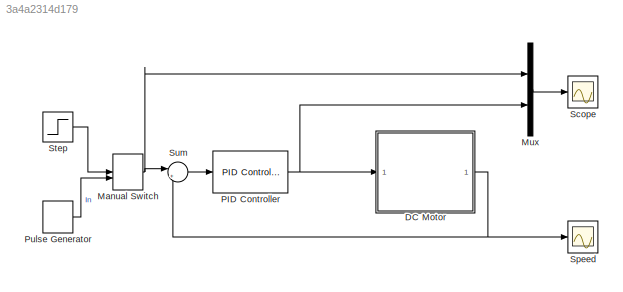
MODEL slx_3a4a2314d179
KIND model
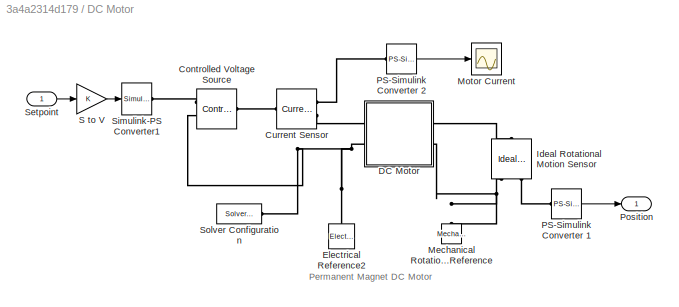
BLOCK [SubSystem] DC Motor
  FunctionWithSeparateData = off
  MaskHideContents = off
  MinAlgLoopOccurrences = off
  Opaque = off
  Ports = [1, 1]
  PropExecContextOutsideSubsystem = off
  RTWSystemCode = Auto
  RequestExecContextInheritance = off
BLOCK [Outport] DC Motor/ Position
  IconDisplay = Port number
BLOCK [Reference] DC Motor/Controlled Voltage Source  REF=fl_lib/Electrical/Electrical Sources/Controlled Voltage
Source
  ClassName = controlled_voltage
  ComponentPath = foundation.electrical.sources.controlled_voltage
  ComponentVariantNames = controlled_voltage
  ComponentVariants = foundation.electrical.sources.controlled_voltage
  LocalVarDescs = |i|v
  LocalVarLogging = [0 0]
  LocalVarNames = |i|v
  Ports = [0, 0, 0, 0, 0, 1, 2]
  SchemaVersion = 1
  SourceBlock = fl_lib/Electrical/Electrical Sources/Controlled Voltage\nSource
  SourceFile = foundation.electrical.sources.controlled_voltage
  SourceType = Controlled Voltage\nSource
  i_Log = off
  v_Log = off
BLOCK [Reference] DC Motor/Current Sensor  REF=fl_lib/Electrical/Electrical Sensors/Current Sensor
  ClassName = sensor_current
  ComponentPath = foundation.electrical.sensors.current
  ComponentVariantNames = current
  ComponentVariants = foundation.electrical.sensors.current
  LocalVarDescs = |i1|v1
  LocalVarLogging = []
  LocalVarNames = |i1|v1
  Ports = [0, 0, 0, 0, 0, 1, 2]
  SchemaVersion = 1
  SourceBlock = fl_lib/Electrical/Electrical Sensors/Current Sensor
  SourceFile = foundation.electrical.sensors.current
  SourceType = Current Sensor
  i1_Log = off
  v1_Log = off
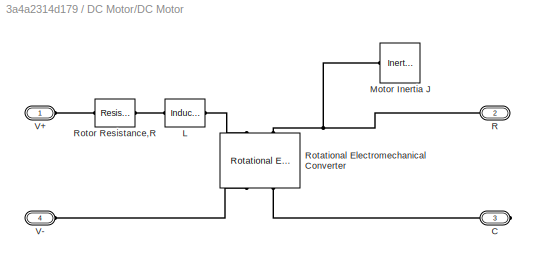
BLOCK [SubSystem] DC Motor/DC Motor
  FunctionWithSeparateData = off
  MaskHideContents = off
  MinAlgLoopOccurrences = off
  Opaque = off
  Ports = [0, 0, 0, 0, 0, 2, 2]
  PropExecContextOutsideSubsystem = off
  RTWSystemCode = Auto
  RequestExecContextInheritance = off
BLOCK [PMIOPort] DC Motor/DC Motor/C
  Port = 3
  Side = Right
BLOCK [Reference] DC Motor/DC Motor/L  REF=fl_lib/Electrical/Electrical Elements/Inductor
  ClassName = inductor
  ComponentPath = foundation.electrical.elements.inductor
  ComponentVariantNames = inductor
  ComponentVariants = foundation.electrical.elements.inductor
  LocalVarDescs = |Inductor current (A) |Voltage across inductor (V)|Power (W)
  LocalVarLogging = [0 0 0]
  LocalVarNames = |current|voltage|power
  Ports = [0, 0, 0, 0, 0, 1, 1]
  SchemaVersion = 1
  SourceBlock = fl_lib/Electrical/Electrical Elements/Inductor
  SourceFile = foundation.electrical.elements.inductor
  SourceType = Inductor
  g = 1e-09
  g_unit = 1/Ohm
  i0 = 0
  i0_unit = A
  i_L_Log = off
  i_Log = off
  l = L
  l_unit = H
  r = 0
  r_unit = Ohm
  v_Log = off
BLOCK [Reference] DC Motor/DC Motor/Motor Inertia J  REF=fl_lib/Mechanical/Rotational Elements/Inertia
  ClassName = inertia
  ComponentPath = foundation.mechanical.rotational.inertia
  ComponentVariantNames = inertia
  ComponentVariants = foundation.mechanical.rotational.inertia
  LocalVarDescs = |Inertia torque (N*m)|Inertia absolute velocity (rad/s)
  LocalVarLogging = [0 0]
  LocalVarNames = |torque|velocity
  Ports = [0, 0, 0, 0, 0, 1]
  SchemaVersion = 1
  SourceBlock = fl_lib/Mechanical/Rotational Elements/Inertia
  SourceFile = foundation.mechanical.rotational.inertia
  SourceType = Inertia
  inertia = J
  inertia_unit = kg*m^2
  initial_velocity = 0
  initial_velocity_unit = rad/s
  t_Log = off
BLOCK [PMIOPort] DC Motor/DC Motor/R
  Port = 2
  Side = Right
BLOCK [Reference] DC Motor/DC Motor/Rotational Electromechanical Converter  REF=fl_lib/Electrical/Electrical Elements/Rotational
Electromechanical
Converter
  ClassName = rotational_converter
  ComponentPath = foundation.electrical.elements.rotational_converter
  ComponentVariantNames = rotational_converter
  ComponentVariants = foundation.electrical.elements.rotational_converter
  K = K
  K_unit = V/rpm
  LocalVarDescs = |Current (A)|Voltage (V)|Power (W)|Torque (Nm)|Angular speed (rad/s)
  LocalVarLogging = [0 0 0 0 0]
  LocalVarNames = |current|voltage|power|torque|speed
  Ports = [0, 0, 0, 0, 0, 2, 2]
  SchemaVersion = 1
  SourceBlock = fl_lib/Electrical/Electrical Elements/Rotational\nElectromechanical\nConverter
  SourceFile = foundation.electrical.elements.rotational_converter
  SourceType = Rotational\nElectromechanical\nConverter
  i_Log = off
  t_Log = off
  v_Log = off
  w_Log = off
BLOCK [Reference] DC Motor/DC Motor/Rotor Resistance,R  REF=fl_lib/Electrical/Electrical Elements/Resistor
  ClassName = resistor
  ComponentPath = foundation.electrical.elements.resistor
  ComponentVariantNames = resistor
  ComponentVariants = foundation.electrical.elements.resistor
  LocalVarDescs = |Resistor current (A)|Voltage across resistor (V)|Power (W)
  LocalVarLogging = [0 0 0]
  LocalVarNames = |current|voltage|power
  Ports = [0, 0, 0, 0, 0, 1, 1]
  R = R
  R_unit = Ohm
  SchemaVersion = 1
  SourceBlock = fl_lib/Electrical/Electrical Elements/Resistor
  SourceFile = foundation.electrical.elements.resistor
  SourceType = Resistor
  Tag = Factory Generic
  i_Log = off
  v_Log = off
BLOCK [PMIOPort] DC Motor/DC Motor/V+
  Port = 1
  Side = Left
BLOCK [PMIOPort] DC Motor/DC Motor/V-
  Port = 4
  Side = Left
BLOCK [Reference] DC Motor/Electrical Reference2  REF=fl_lib/Electrical/Electrical Elements/Electrical Reference
  ClassName = reference_electrical
  ComponentPath = foundation.electrical.elements.reference
  ComponentVariantNames = reference
  ComponentVariants = foundation.electrical.elements.reference
  LocalVarDescs = |i
  LocalVarLogging = []
  LocalVarNames = |i
  Ports = [0, 0, 0, 0, 0, 1]
  SchemaVersion = 1
  SourceBlock = fl_lib/Electrical/Electrical Elements/Electrical Reference
  SourceFile = foundation.electrical.elements.reference
  SourceType = Electrical Reference
  i_Log = off
BLOCK [Reference] DC Motor/Ideal Rotational Motion Sensor  REF=fl_lib/Mechanical/Mechanical Sensors/Ideal Rotational
Motion Sensor
  ClassName = sensor_rot_motion
  ComponentPath = foundation.mechanical.sensors.angular_velocity
  ComponentVariantNames = angular_velocity
  ComponentVariants = foundation.mechanical.sensors.angular_velocity
  LocalVarDescs = |w|t|phi
  LocalVarLogging = []
  LocalVarNames = |w|t|phi
  Ports = [0, 0, 0, 0, 0, 1, 3]
  SchemaVersion = 1
  SourceBlock = fl_lib/Mechanical/Mechanical Sensors/Ideal Rotational\nMotion Sensor
  SourceFile = foundation.mechanical.sensors.angular_velocity
  SourceType = Ideal Rotational\nMotion Sensor
  offset = 300
  offset_unit = deg
  phi_Log = off
  t_Log = off
  w_Log = off
BLOCK [Reference] DC Motor/Mechanical Rotational Reference  REF=fl_lib/Mechanical/Rotational Elements/Mechanical
Rotational Reference
  ClassName = reference_rot
  ComponentPath = foundation.mechanical.rotational.reference
  ComponentVariantNames = reference
  ComponentVariants = foundation.mechanical.rotational.reference
  LocalVarDescs = |t
  LocalVarLogging = []
  LocalVarNames = |t
  Ports = [0, 0, 0, 0, 0, 1]
  SchemaVersion = 1
  SourceBlock = fl_lib/Mechanical/Rotational Elements/Mechanical\nRotational Reference
  SourceFile = foundation.mechanical.rotational.reference
  SourceType = Mechanical\nRotational Reference
  t_Log = off
BLOCK [Scope] DC Motor/Motor Current
  DataFormat = StructureWithTime
  Floating = off
  LimitDataPoints = off
  NumInputPorts = 1
  Ports = [1]
  SampleTime = 0
  SaveName = ScopeData1
  ShowLegends = off
  YMax = 2.25
  YMin = 0
  ZoomMode = yonly
BLOCK [Reference] DC Motor/PS-Simulink Converter 1  REF=nesl_utility/PS-Simulink
Converter
  AffineConversion = off
  Frequencies = []
  LeftPortType = input
  PhysicalDomain = network_engine_domain
  Ports = [0, 1, 0, 0, 0, 1]
  PseudoPeriodic = off
  RightPortType = output
  SourceBlock = nesl_utility/PS-Simulink\nConverter
  SourceType = PS-Simulink\nConverter
  SubClassName = ps_output
  Unit = deg
BLOCK [Reference] DC Motor/PS-Simulink Converter 2  REF=nesl_utility/PS-Simulink
Converter
  AffineConversion = off
  Frequencies = []
  LeftPortType = input
  PhysicalDomain = network_engine_domain
  Ports = [0, 1, 0, 0, 0, 1]
  PseudoPeriodic = off
  RightPortType = output
  SourceBlock = nesl_utility/PS-Simulink\nConverter
  SourceType = PS-Simulink\nConverter
  SubClassName = ps_output
  Unit = 1
BLOCK [Gain] DC Motor/S to V
  Gain = K
  OutDataTypeStr = Inherit: Inherit via internal rule
  ParamDataTypeStr = Inherit: Inherit via internal rule
  SaturateOnIntegerOverflow = off
BLOCK [Inport] DC Motor/Setpoint
  IconDisplay = Port number
BLOCK [Reference] DC Motor/Simulink-PS Converter1  REF=nesl_utility/Simulink-PS
Converter
  AffineConversion = off
  Frequencies = []
  InputFilterTimeConstant = .001
  InputFiltering = off
  LeftPortType = input
  NoiseDistribution = none
  NoiseParameters = []
  PhysicalDomain = network_engine_domain
  Ports = [1, 0, 0, 0, 0, 0, 1]
  PseudoPeriodic = off
  RightPortType = output
  SimscapeFilterOrder = 1
  SourceBlock = nesl_utility/Simulink-PS\nConverter
  SourceType = Simulink-PS\nConverter
  SubClassName = ps_input
  UdotUserProvided = 0
  Unit = V
BLOCK [Reference] DC Motor/Solver Configuration  REF=nesl_utility/Solver
Configuration
  AbsTol = 1e-06
  Accelerate = off
  DelaysMemoryBudget = 1024
  DoDC = off
  DoFixedCost = off
  EnableSwitchedLinearOptims = on
  FrequencyDomain = off
  Harmonics = []
  LeftPortType = input
  LinearAlgebra = Sparse
  LocalSolverChoice = NE_BACKWARD_EULER_ADVANCER
  LocalSolverSampleTime = .001
  MaxModeIter = 2
  MaxNonlinIter = 3
  MinStep = 1e-09
  PhysicalDomain = network_engine_domain
  Ports = [0, 0, 0, 0, 0, 0, 1]
  Profile = off
  RelTol = 0.001
  ResidualTolerance = 1e-9
  RightPortType = generic
  SimulateNoise = off
  SourceBlock = nesl_utility/Solver\nConfiguration
  SourceType = Solver\nConfiguration
  SubClassName = solver
  ToWorkspace = off
  Tones = []
  UseCCode = off
  UseLocalSampling = off
  UseLocalSolver = off
BLOCK [ManualSwitch] Manual Switch
BLOCK [Mux] Mux
  DisplayOption = bar
  Inputs = 2
  Ports = [2, 1]
BLOCK [Reference] PID Controller  REF=simulink/Continuous/PID Controller
  AntiWindupMode = none
  Controller = PID
  D = 0
  DOutDataTypeStr = Inherit: Inherit via internal rule
  DOutMax = []
  DOutMin = []
  DParamDataTypeStr = Inherit: Inherit via internal rule
  DParamMax = []
  DParamMin = []
  ExternalReset = none
  FilterContinuousStateAttributes = ''
  FilterMethod = Forward Euler
  FilterOutDataTypeStr = Inherit: Inherit via internal rule
  FilterOutMax = []
  FilterOutMin = []
  FilterRTWStateStorageClass = Auto
  FilterStateMustResolveToSignalObject = off
  Form = Parallel
  I = 0
  IOutDataTypeStr = Inherit: Inherit via internal rule
  IOutMax = []
  IOutMin = []
  IParamDataTypeStr = Inherit: Inherit via internal rule
  IParamMax = []
  IParamMin = []
  IgnoreLimit = off
  InitialConditionForFilter = 0
  InitialConditionForIntegrator = 0
  InitialConditionSource = internal
  IntegratorContinuousStateAttributes = ''
  IntegratorMethod = Forward Euler
  IntegratorOutDataTypeStr = Inherit: Inherit via internal rule
  IntegratorOutMax = []
  IntegratorOutMin = []
  IntegratorRTWStateStorageClass = Auto
  IntegratorStateMustResolveToSignalObject = off
  Kb = 1
  KbOutDataTypeStr = Inherit: Inherit via internal rule
  KbOutMax = []
  KbOutMin = []
  KbParamDataTypeStr = Inherit: Inherit via internal rule
  KbParamMax = []
  KbParamMin = []
  Kt = 1
  KtOutDataTypeStr = Inherit: Inherit via internal rule
  KtOutMax = []
  KtOutMin = []
  KtParamDataTypeStr = Inherit: Inherit via internal rule
  KtParamMax = []
  KtParamMin = []
  LimitOutput = off
  LinearizeAsGain = on
  LockScale = off
  LowerSaturationLimit = 0
  N = 58.2381885976492
  NOutDataTypeStr = Inherit: Inherit via internal rule
  NOutMax = []
  NOutMin = []
  NParamDataTypeStr = Inherit: Inherit via internal rule
  NParamMax = []
  NParamMin = []
  P = 1
  POutDataTypeStr = Inherit: Inherit via internal rule
  POutMax = []
  POutMin = []
  PParamDataTypeStr = Inherit: Inherit via internal rule
  PParamMax = []
  PParamMin = []
  Ports = [1, 1]
  RndMeth = Floor
  SampleTime = .1
  SaturateOnIntegerOverflow = off
  SaturationOutDataTypeStr = Inherit: Same as input
  SaturationOutMax = []
  SaturationOutMin = []
  SourceBlock = simulink/Continuous/PID Controller
  SourceType = PID 1dof
  SumAccumDataTypeStr = Inherit: Inherit via internal rule
  SumDAccumDataTypeStr = Inherit: Inherit via internal rule
  SumDOutDataTypeStr = Inherit: Inherit via internal rule
  SumDOutMax = []
  SumDOutMin = []
  SumI1AccumDataTypeStr = Inherit: Inherit via internal rule
  SumI1OutDataTypeStr = Inherit: Inherit via internal rule
  SumI1OutMax = []
  SumI1OutMin = []
  SumI2AccumDataTypeStr = Inherit: Inherit via internal rule
  SumI2OutDataTypeStr = Inherit: Inherit via internal rule
  SumI2OutMax = []
  SumI2OutMin = []
  SumI3AccumDataTypeStr = Inherit: Inherit via internal rule
  SumI3OutDataTypeStr = Inherit: Inherit via internal rule
  SumI3OutMax = []
  SumI3OutMin = []
  SumOutDataTypeStr = Inherit: Inherit via internal rule
  SumOutMax = []
  SumOutMin = []
  TimeDomain = Discrete-time
  TrackingMode = off
  UpperSaturationLimit = 24/K
  ZeroCross = on
BLOCK [DiscretePulseGenerator] Pulse Generator
  Amplitude = 100
  Period = 15
  PhaseDelay = 1
  Ports = [0, 1]
  PulseType = Time based
  PulseWidth = 50
BLOCK [Scope] Scope
  DataFormat = StructureWithTime
  Floating = off
  NumInputPorts = 1
  Ports = [1]
  SampleTime = 0
  ShowLegends = off
  YMax = 2000
  YMin = 0
  ZoomMode = xonly
BLOCK [Scope] Speed
  DataFormat = StructureWithTime
  Floating = off
  NumInputPorts = 1
  Ports = [1]
  SampleTime = 0
  SaveName = ScopeData2
  ShowLegends = off
  YMax = 2000
  YMin = 0
  ZoomMode = yonly
BLOCK [Step] Step
  After = 100
  SampleTime = 0
  Time = 0
BLOCK [Sum] Sum
  IconShape = round
  InputSameDT = off
  Inputs = |+-
  OutDataTypeStr = Inherit: Inherit via internal rule
  Ports = [2, 1]
  SaturateOnIntegerOverflow = off
ANNOTATION DC Motor: Permanent Magnet DC Motor
LINE DC Motor/PS-Simulink Converter 1:1 -> DC Motor/ Position:1
LINE DC Motor/PS-Simulink Converter 2:1 -> DC Motor/Motor Current:1
LINE DC Motor/S to V:1 -> DC Motor/Simulink-PS Converter1:1
LINE DC Motor/Setpoint:1 -> DC Motor/S to V:1
NET DC Motor:1 -> Speed:1, Sum:2
NET Manual Switch:1 -> Mux:1, Sum:1
LINE Mux:1 -> Scope:1
NET PID Controller:1 -> DC Motor:1, Mux:2
LINE Pulse Generator:1 -> Manual Switch:2
LINE Step:1 -> Manual Switch:1
LINE Sum:1 -> PID Controller:1
PLINE DC Motor/Controlled Voltage Source:LConn1 -- DC Motor/Current Sensor:LConn1
PLINE DC Motor/Controlled Voltage Source:RConn1 -- DC Motor/Simulink-PS Converter1:RConn1
PNET net1: DC Motor/Controlled Voltage Source:RConn2 -- DC Motor/DC Motor:LConn2 -- DC Motor/Electrical Reference2:LConn1 -- DC Motor/Solver Configuration:RConn1
PLINE DC Motor/Current Sensor:RConn1 -- DC Motor/PS-Simulink Converter 2:LConn1
PLINE DC Motor/Current Sensor:RConn2 -- DC Motor/DC Motor:LConn1
PLINE DC Motor/DC Motor/C:RConn1 -- DC Motor/DC Motor/Rotational Electromechanical Converter:RConn2
PLINE DC Motor/DC Motor/L:LConn1 -- DC Motor/DC Motor/Rotor Resistance,R:RConn1
PLINE DC Motor/DC Motor/L:RConn1 -- DC Motor/DC Motor/Rotational Electromechanical Converter:LConn1
PNET net2: DC Motor/DC Motor/Motor Inertia J:LConn1 -- DC Motor/DC Motor/R:RConn1 -- DC Motor/DC Motor/Rotational Electromechanical Converter:LConn2
PLINE DC Motor/DC Motor/Rotational Electromechanical Converter:RConn1 -- DC Motor/DC Motor/V-:RConn1
PLINE DC Motor/DC Motor/Rotor Resistance,R:LConn1 -- DC Motor/DC Motor/V+:RConn1
PLINE DC Motor/DC Motor:RConn1 -- DC Motor/Ideal Rotational Motion Sensor:LConn1
PNET net3: DC Motor/DC Motor:RConn2 -- DC Motor/Ideal Rotational Motion Sensor:RConn1 -- DC Motor/Mechanical Rotational Reference:LConn1
PLINE DC Motor/Ideal Rotational Motion Sensor:RConn3 -- DC Motor/PS-Simulink Converter 1:LConn1
note: NET lines group one-source signal fan-out (src -> all destinations, sorted); 1:1 wires keep LINE; PNET lines group multi-terminal physical nets as a canonical sorted terminal list (undirected conserving connections); 2-terminal nets keep the pairwise PLINE form
